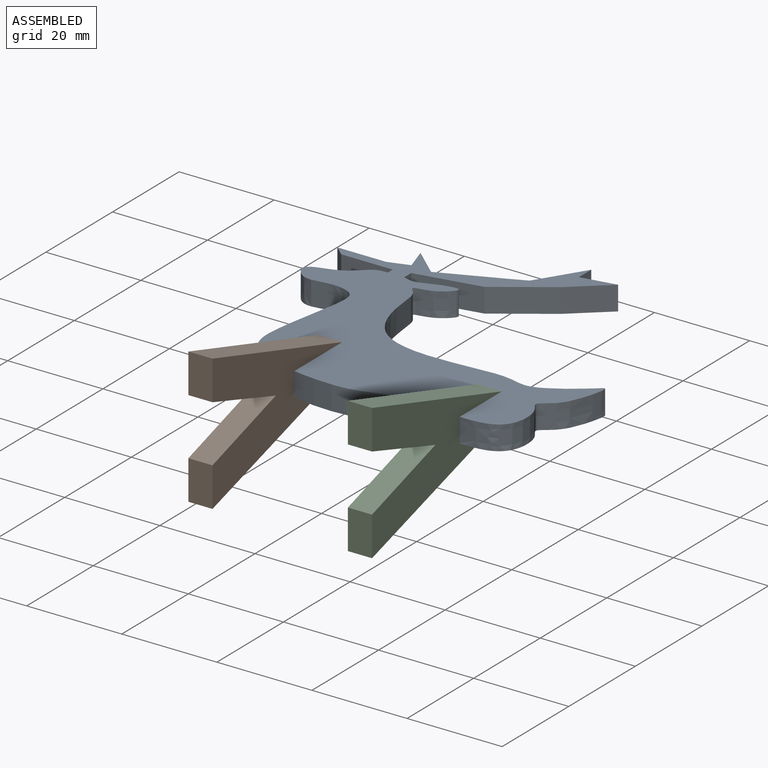
[diagram: assembled view]
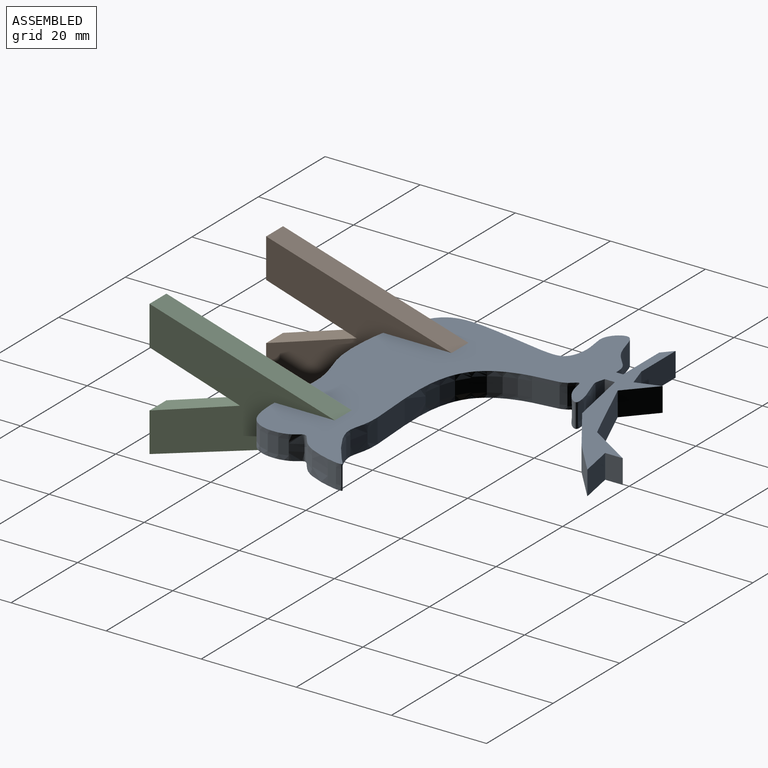
[diagram: assembled view, second angle]
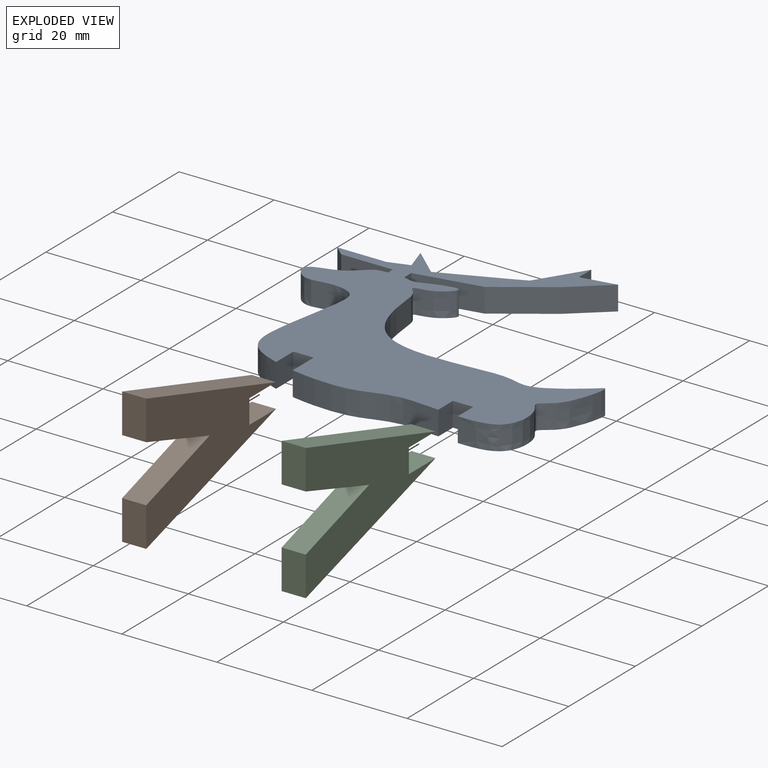
[diagram: exploded view]
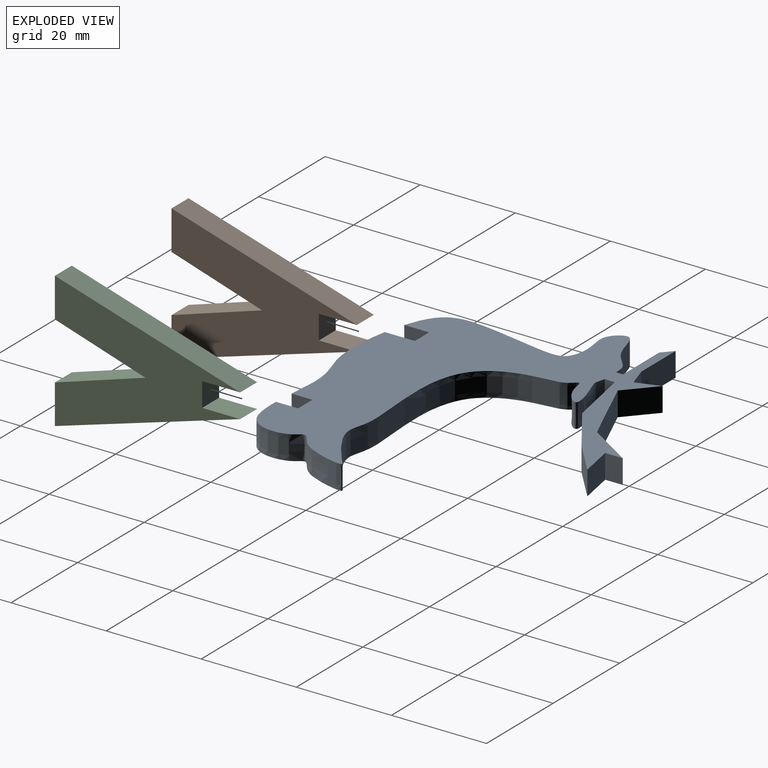
[diagram: exploded view, second angle]
ASSEMBLY  parts=3 mates=2
PART A: 27 faces, bbox 71.7x64.2x5.1 mm
  f0: extruded ~29.76x5.08mm, area 153.1mm2, adj f1,f24,f25,f26
  f1: plane 5.08x4.37mm, normal (1,0,0), area 22.2mm2, adj f0,f2,f25,f26
  f2: plane 5.08x4.28mm, normal (0,-1,0), area 21.8mm2, adj f1,f3,f25,f26
  f3: plane 5.08x4.66mm, normal (-1,0,0), area 23.7mm2, adj f2,f4,f25,f26
  f4: extruded ~54.45x42.51mm, area 580.3mm2, adj f3,f5,f25,f26
  f5: plane 5.08x2.12mm, normal (1,0,0), area 10.8mm2, adj f4,f6,f25,f26
  f6: plane 13.58x5.08mm, normal (0.19,-0.98,0), area 70.3mm2, adj f5,f7,f25,f26
  f7: plane 10.87x7.47mm, normal (0.57,-0.82,0), area 67mm2, adj f6,f8,f25,f26
  f8: plane 7.47x6.45mm, normal (0.65,-0.76,0), area 50.1mm2, adj f7,f9,f25,f26
  f9: plane 7.3x5.08mm, normal (-0.18,0.98,0), area 37.7mm2, adj f8,f10,f25,f26
  f10: plane 5.08x3.7mm, normal (1,0,0), area 18.8mm2, adj f9,f11,f25,f26
  f11: plane 9.71x6.13mm, normal (-0.85,0.53,0), area 58.3mm2, adj f10,f12,f25,f26
  f12: plane 5.08x3.47mm, normal (-0.4,0.91,0), area 19.2mm2, adj f11,f13,f25,f26
  f13: plane 12.5x5.3mm, normal (-0.39,0.92,0), area 69mm2, adj f12,f14,f25,f26
  f14: plane 5.94x5.3mm, normal (0.67,0.75,0), area 40.4mm2, adj f13,f15,f25,f26
  f15: plane 5.08x5.01mm, normal (-0.95,-0.3,0), area 26.7mm2, adj f14,f16,f25,f26
  f16: plane 5.08x4.3mm, normal (-0.3,0.95,0), area 22.9mm2, adj f15,f17,f25,f26
  f17: plane 10.32x5.08mm, normal (0,1,0), area 52.4mm2, adj f16,f18,f25,f26
  f18: plane 5.08x2.17mm, normal (-0.67,-0.75,0), area 14.8mm2, adj f17,f19,f25,f26
  f19: plane 10.85x5.08mm, normal (0,-1,0), area 55.1mm2, adj f18,f20,f25,f26
  f20: plane 5.08x1.46mm, normal (-1,0,0), area 7.4mm2, adj f19,f21,f25,f26
  f21: extruded ~40.96x18.15mm, area 326.1mm2, adj f20,f22,f25,f26
  f22: plane 5.22x5.08mm, normal (1,0,0), area 26.5mm2, adj f21,f23,f25,f26
  f23: plane 5.08x4.28mm, normal (0,-1,0), area 21.8mm2, adj f22,f24,f25,f26
  f24: plane 6.31x5.08mm, normal (-1,0,0), area 32mm2, adj f0,f23,f25,f26
  f25: plane 71.72x64.2mm, normal (0,0,1), area 1480.8mm2, adj f0,f1,f2,f3,f4,f5,f6,f7
  f26: plane 71.72x64.2mm, normal (0,0,-1), area 1480.8mm2, adj f0,f1,f2,f3,f4,f5,f6,f7
PART B: 11 faces, bbox 28.6x39x5.1 mm
  f0: plane 8x5.08mm, normal (1,0,0), area 40.6mm2, adj f1,f8,f9,f10
  f1: plane 38.98x11.74mm, normal (-0.96,0.29,0), area 206.8mm2, adj f0,f2,f9,f10
  f2: plane 8.28x5.08mm, normal (0,-1,0), area 42.1mm2, adj f1,f3,f9,f10
  f3: plane 19.05x6mm, normal (0.95,-0.3,0), area 101.5mm2, adj f2,f4,f9,f10
  f4: plane 19.05x6mm, normal (-0.95,-0.3,0), area 101.5mm2, adj f3,f5,f9,f10
  f5: plane 8.28x5.08mm, normal (0,-1,0), area 42.1mm2, adj f4,f6,f9,f10
  f6: plane 38.98x11.74mm, normal (0.96,0.29,0), area 206.8mm2, adj f5,f7,f9,f10
  f7: plane 8x5.08mm, normal (-1,0,0), area 40.6mm2, adj f6,f8,f9,f10
  f8: plane 5.08x5.08mm, normal (0,1,0), area 25.8mm2, adj f0,f7,f9,f10
  f9: plane 38.98x28.56mm, normal (0,0,1), area 500.7mm2, adj f0,f1,f2,f3,f4,f5,f6,f7
  f10: plane 38.98x28.56mm, normal (0,0,-1), area 500.7mm2, adj f0,f1,f2,f3,f4,f5,f6,f7
PART C: same geometry as B
PLACE A at identity
PLACE B rot(axis=(0,-1,0),90deg) t=(-14.28,-32.35,2.54)mm
PLACE C rot(axis=(0,-1,0),90deg) t=(19.76,-33.05,2.54)mm
MATE fastened B.f8 <-> A.f23  axis (0,1,0) through (-16.82,-1.37,2.54)mm
MATE fastened C.f8 <-> A.f2  axis (0,1,0) through (17.22,-2.07,2.54)mm
